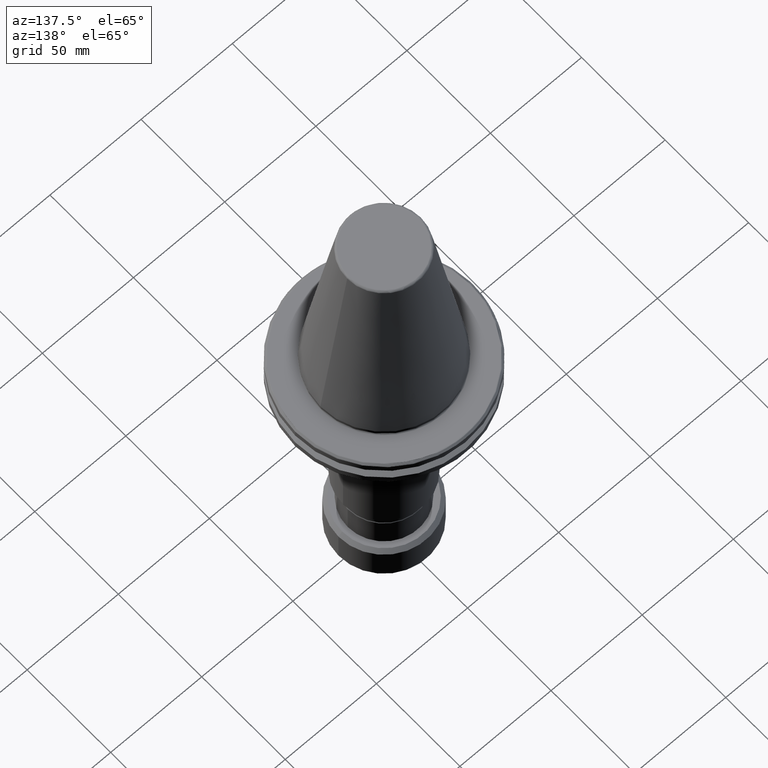
[diagram: clean part render]
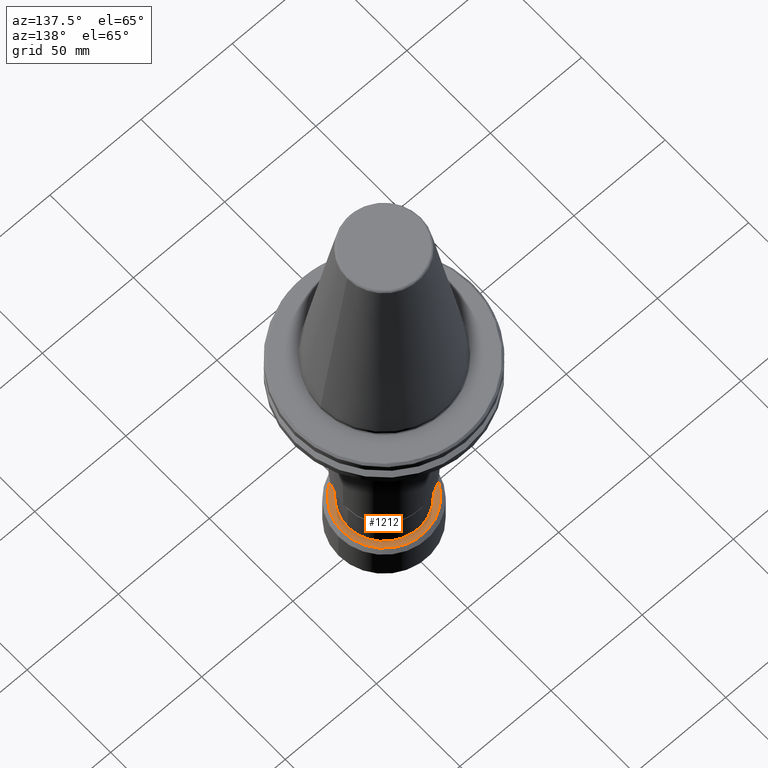
[diagram: same view with one face highlighted and labeled with its STEP entity id]
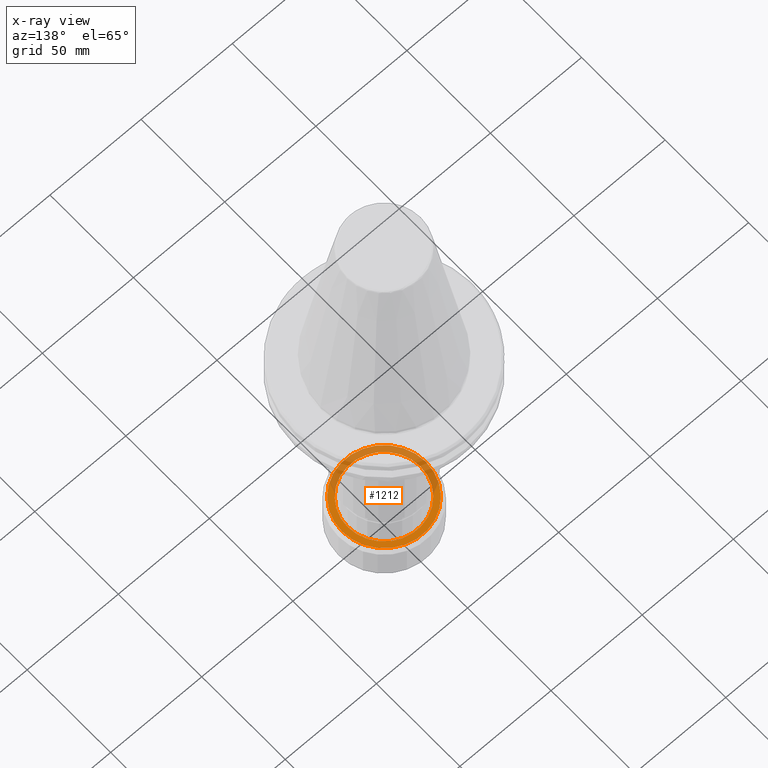
[diagram: x-ray of the same camera — body ghosted, the highlighted face saturated]
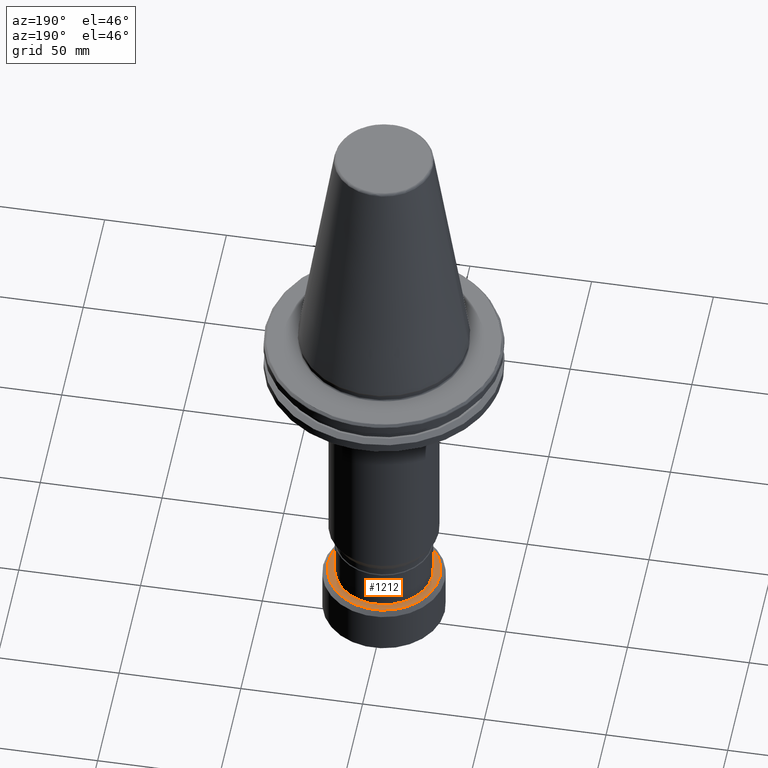
[diagram: same view with one face highlighted and labeled with its STEP entity id]
A machine part, auxiliary view. The second image highlights one B-rep face of the part: STEP entity #1212.
The next image is the same camera in x-ray: the body ghosted, the highlighted face saturated — about 44% of this face is hidden behind the body in this view.
A second angle (auxiliary view) of the same face is appended — the face is thin or edge-on in the first view.
In plain terms, the highlighted planar face has unit normal (0, 0, -1).
Its self-contained STEP definition (entity closure, byte-faithful):
#116 = FACE_OUTER_BOUND ( 'NONE', #2383, .T. ) ;
#148 = EDGE_LOOP ( 'NONE', ( #639, #1834 ) ) ;
#152 = VERTEX_POINT ( 'NONE', #651 ) ;
#166 = CIRCLE ( 'NONE', #3160, 23.00000000000000000 ) ;
#251 = CARTESIAN_POINT ( 'NONE',  ( 23.00000000000000000, 2.939152317953647900E-015, -137.0000000000000000 ) ) ;
#290 = CIRCLE ( 'NONE', #603, 19.94999999999999600 ) ;
#401 = EDGE_CURVE ( 'NONE', #152, #502, #1159, .T. ) ;
#462 = CIRCLE ( 'NONE', #2913, 23.00000000000000000 ) ;
#501 = PLANE ( 'NONE',  #1735 ) ;
#502 = VERTEX_POINT ( 'NONE', #2862 ) ;
#603 = AXIS2_PLACEMENT_3D ( 'NONE', #606, #2486, #887 ) ;
#606 = CARTESIAN_POINT ( 'NONE',  ( 0.0000000000000000000, 0.0000000000000000000, -137.0000000000000000 ) ) ;
#639 = ORIENTED_EDGE ( 'NONE', *, *, #401, .F. ) ;
#651 = CARTESIAN_POINT ( 'NONE',  ( 19.94999999999999600, 0.0000000000000000000, -137.0000000000000000 ) ) ;
#678 = FACE_BOUND ( 'NONE', #148, .T. ) ;
#761 = VERTEX_POINT ( 'NONE', #1823 ) ;
#783 = ORIENTED_EDGE ( 'NONE', *, *, #1762, .F. ) ;
#790 = DIRECTION ( 'NONE',  ( 0.0000000000000000000, 0.0000000000000000000, -1.000000000000000000 ) ) ;
#877 = DIRECTION ( 'NONE',  ( 0.0000000000000000000, 0.0000000000000000000, -1.000000000000000000 ) ) ;
#887 = DIRECTION ( 'NONE',  ( 1.000000000000000000, 0.0000000000000000000, 0.0000000000000000000 ) ) ;
#1159 = CIRCLE ( 'NONE', #1955, 19.94999999999999600 ) ;
#1188 = DIRECTION ( 'NONE',  ( 1.000000000000000000, 0.0000000000000000000, 0.0000000000000000000 ) ) ;
#1212 = ADVANCED_FACE ( 'NONE', ( #678, #116 ), #501, .F. ) ;
#1237 = CARTESIAN_POINT ( 'NONE',  ( 0.0000000000000000000, 0.0000000000000000000, -137.0000000000000000 ) ) ;
#1238 = VERTEX_POINT ( 'NONE', #251 ) ;
#1317 = DIRECTION ( 'NONE',  ( 0.0000000000000000000, 0.0000000000000000000, 1.000000000000000000 ) ) ;
#1386 = CARTESIAN_POINT ( 'NONE',  ( 0.0000000000000000000, 0.0000000000000000000, -137.0000000000000000 ) ) ;
#1653 = DIRECTION ( 'NONE',  ( -1.000000000000000000, 0.0000000000000000000, 0.0000000000000000000 ) ) ;
#1735 = AXIS2_PLACEMENT_3D ( 'NONE', #3387, #790, #2642 ) ;
#1762 = EDGE_CURVE ( 'NONE', #1238, #761, #462, .T. ) ;
#1823 = CARTESIAN_POINT ( 'NONE',  ( -23.00000000000000000, 0.0000000000000000000, -137.0000000000000000 ) ) ;
#1834 = ORIENTED_EDGE ( 'NONE', *, *, #1891, .F. ) ;
#1870 = EDGE_CURVE ( 'NONE', #761, #1238, #166, .T. ) ;
#1891 = EDGE_CURVE ( 'NONE', #502, #152, #290, .T. ) ;
#1955 = AXIS2_PLACEMENT_3D ( 'NONE', #1237, #1317, #1188 ) ;
#2383 = EDGE_LOOP ( 'NONE', ( #2433, #783 ) ) ;
#2433 = ORIENTED_EDGE ( 'NONE', *, *, #1870, .F. ) ;
#2479 = CARTESIAN_POINT ( 'NONE',  ( 0.0000000000000000000, 0.0000000000000000000, -137.0000000000000000 ) ) ;
#2486 = DIRECTION ( 'NONE',  ( 0.0000000000000000000, 0.0000000000000000000, 1.000000000000000000 ) ) ;
#2642 = DIRECTION ( 'NONE',  ( -1.000000000000000000, 0.0000000000000000000, -0.0000000000000000000 ) ) ;
#2713 = DIRECTION ( 'NONE',  ( -1.000000000000000000, 0.0000000000000000000, 0.0000000000000000000 ) ) ;
#2862 = CARTESIAN_POINT ( 'NONE',  ( -19.94999999999999600, 2.443170364298969000E-015, -137.0000000000000000 ) ) ;
#2913 = AXIS2_PLACEMENT_3D ( 'NONE', #1386, #3135, #1653 ) ;
#3135 = DIRECTION ( 'NONE',  ( 0.0000000000000000000, 0.0000000000000000000, -1.000000000000000000 ) ) ;
#3160 = AXIS2_PLACEMENT_3D ( 'NONE', #2479, #877, #2713 ) ;
#3387 = CARTESIAN_POINT ( 'NONE',  ( 0.0000000000000000000, 0.0000000000000000000, -137.0000000000000000 ) ) ;